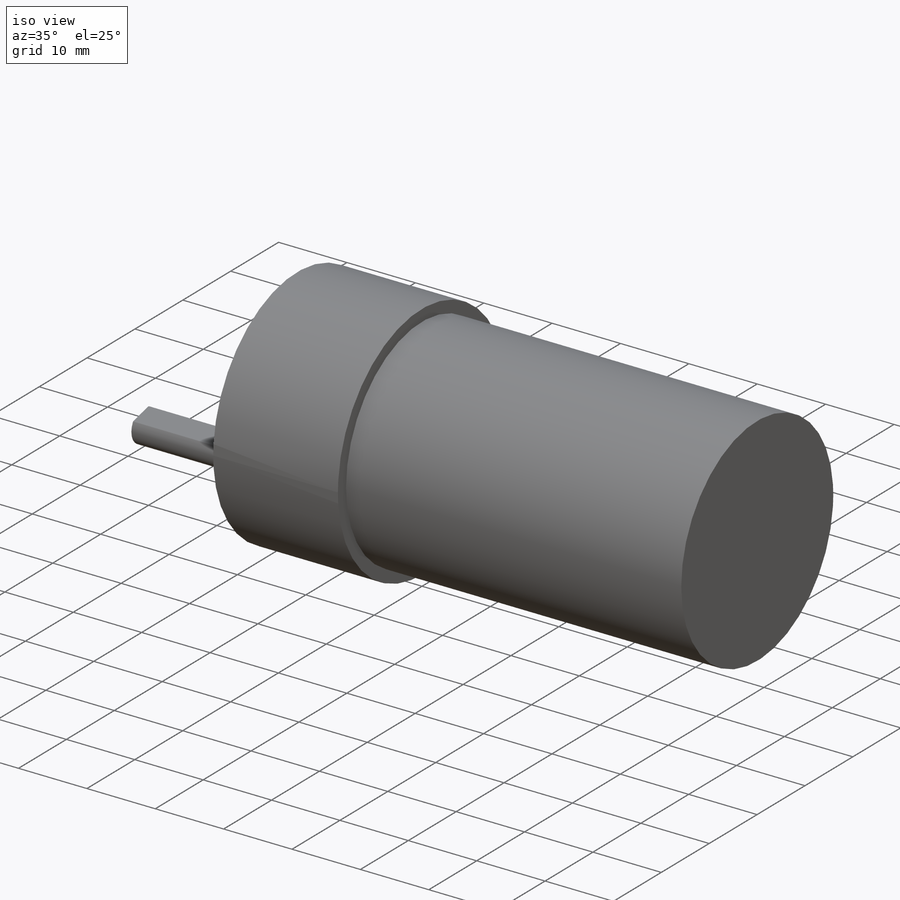
[diagram: iso view]
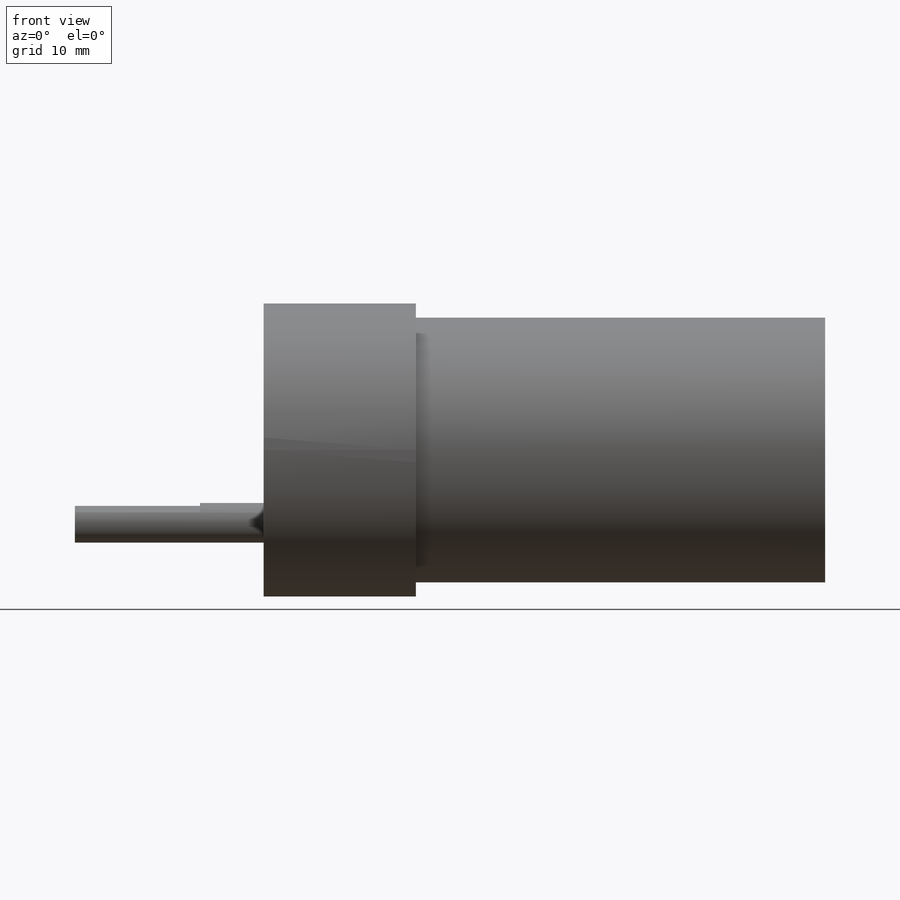
[diagram: front view]
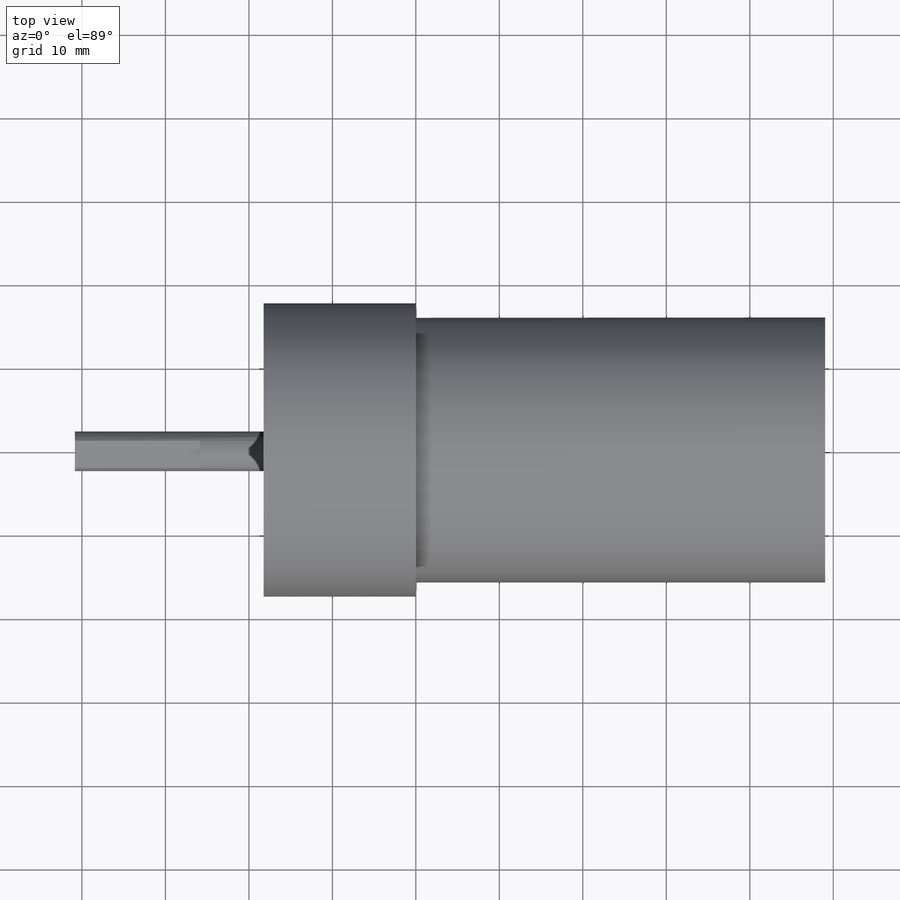
[diagram: top view]
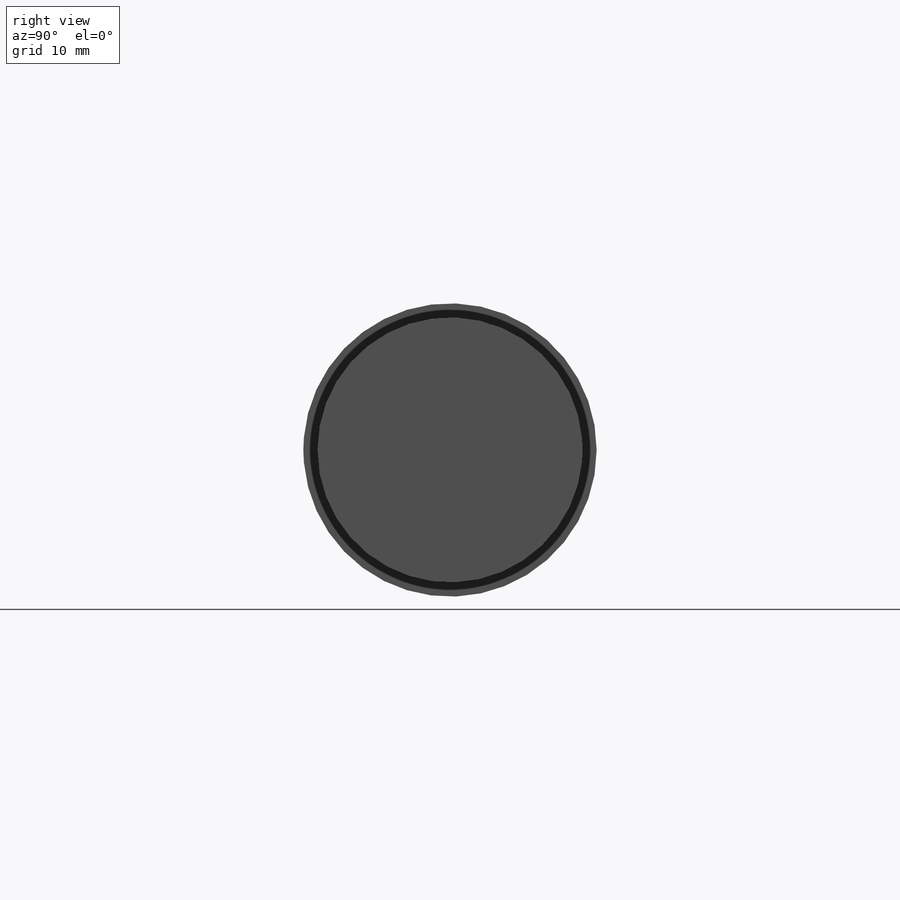
[diagram: right view]
SOLIDWORKS PART (.sldprt)
format: sldprt  version: not decoded by parser v0  size: 230,912 bytes
history: native  units: mm
features: sketch x8, extrude x3, cut_extrude x3, plane x3, material x1 (+12 scaffold rows collapsed)
feature tree (30):
  scaffold x12  (default folders/planes/origin — collapsed)
  material  "Steel Shell"
  sketch  "Sketch1"  dims[D1=31.75mm]
  extrude  "Extrude1"  Depth=49.022mm
  sketch  "Sketch3"  dims[D1=~17.56551mm]
  extrude  "Extrude3"  Depth=18.2372mm
  sketch  "Sketch4"  dims[D2=4.7498mm D1=~8.71855mm]
  extrude  "Extrude4"  Depth=22.606mm
  sketch  "Sketch5"  dims[D2=2.54mm D1=22.1742mm]
  cut_extrude  "Cut-Extrude1"  Depth=10mm
  sketch  "Sketch6"  dims[D1=10.2108mm]
  cut_extrude  "Cut-Extrude2"  Depth=10mm
  sketch  "3DSketch3"
  sketch  "Sketch7"  dims[D1=7.62mm]
  cut_extrude  "Cut-Extrude3"  Depth=0.6858mm
  sketch  "Sketch9"
  plane  "Plane3"
  plane  "Plane4"
  plane  "Plane5"
decode coverage: 12 of 14 modeling features carry decoded parameters
note: ~ marks probable driven/reference dimensions
note: suppression state not decoded; provenance and decode notes live in map.json
